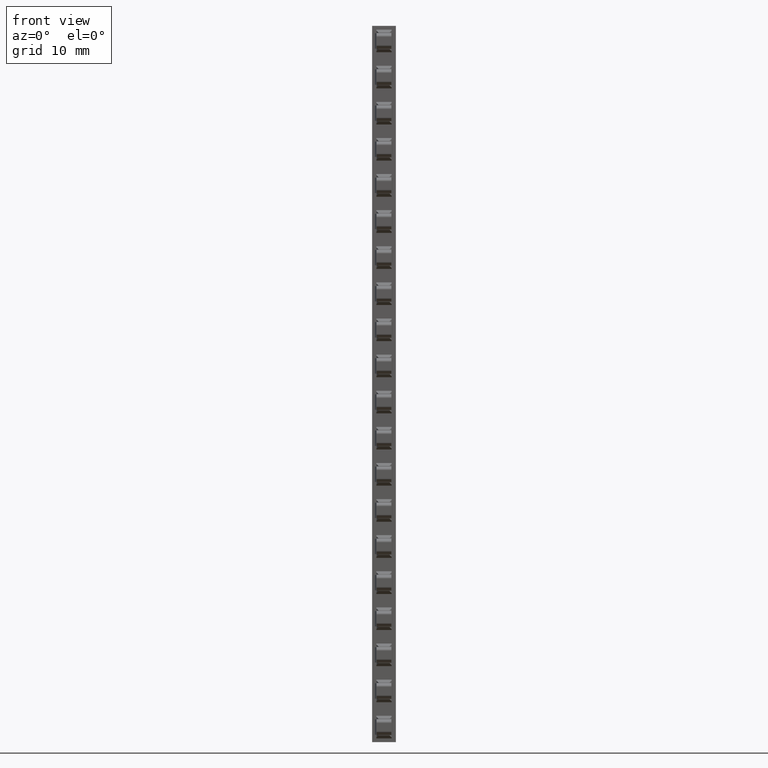
[diagram: clean part render]
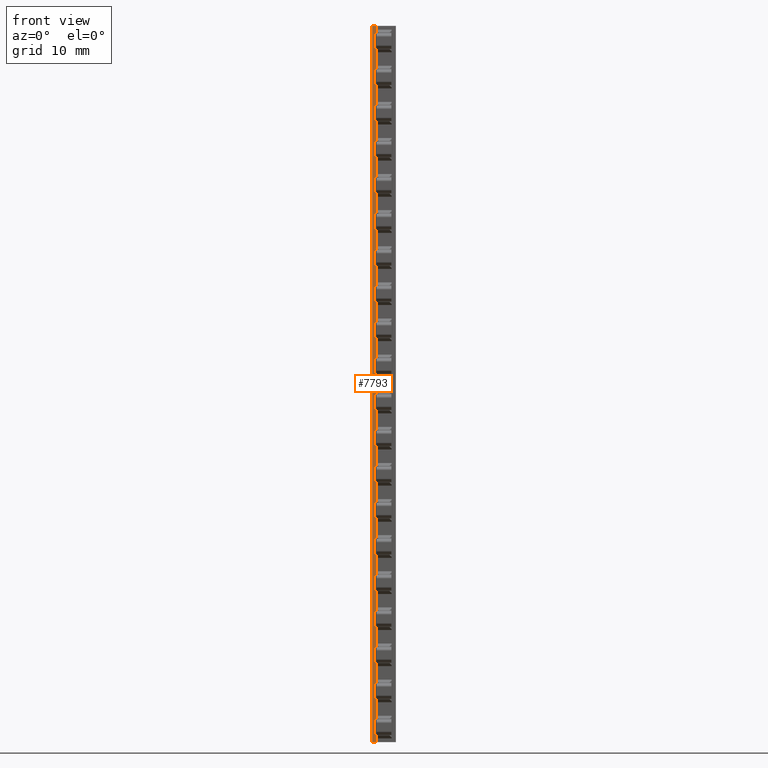
[diagram: same view with one face highlighted and labeled with its STEP entity id]
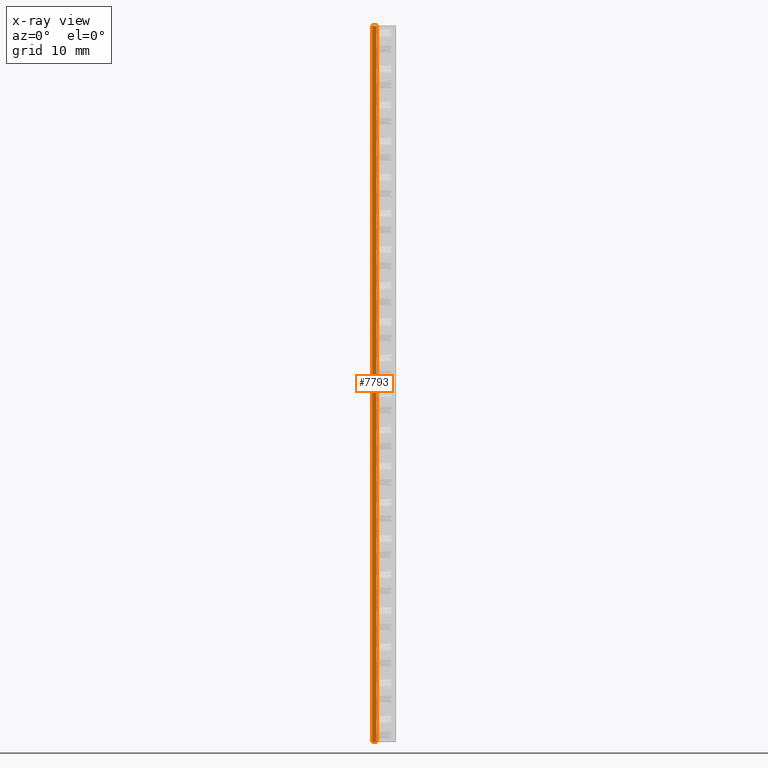
[diagram: x-ray of the same camera — body ghosted, the highlighted face saturated]
A machine part, front view. The second image highlights one B-rep face of the part: STEP entity #7793.
The next image is the same camera in x-ray: the body ghosted, the highlighted face saturated — about 0% of this face is hidden behind the body in this view.
In plain terms, the highlighted planar face has unit normal (0, 1, 0).
Its self-contained STEP definition (entity closure, byte-faithful):
#117 = EDGE_LOOP ( 'NONE', ( #16133, #16113, #16106, #16092 ) ) ;
#371 = VECTOR ( 'NONE', #18965, 1000.000000000000000 ) ;
#480 = VECTOR ( 'NONE', #19151, 1000.000000000000000 ) ;
#2974 = EDGE_CURVE ( 'NONE', #10568, #10432, #18139, .T. ) ;
#2981 = EDGE_CURVE ( 'NONE', #10568, #10345, #18243, .T. ) ;
#4088 = EDGE_CURVE ( 'NONE', #10338, #10432, #18979, .T. ) ;
#4148 = EDGE_CURVE ( 'NONE', #10345, #10338, #19137, .T. ) ;
#7793 = ADVANCED_FACE ( 'NONE', ( #9536 ), #9562, .F. ) ;
#9536 = FACE_OUTER_BOUND ( 'NONE', #117, .T. ) ;
#9539 = DIRECTION ( 'NONE',  ( 0.0000000000000000000, -0.0000000000000000000, 1.000000000000000000 ) ) ;
#9562 = PLANE ( 'NONE',  #25580 ) ;
#9565 = CARTESIAN_POINT ( 'NONE',  ( 1456.167660365589900, 1008.542679537518100, -100.1158559843420100 ) ) ;
#9571 = DIRECTION ( 'NONE',  ( 0.0000000000000000000, 1.000000000000000000, 0.0000000000000000000 ) ) ;
#10338 = VERTEX_POINT ( 'NONE', #26032 ) ;
#10345 = VERTEX_POINT ( 'NONE', #26042 ) ;
#10432 = VERTEX_POINT ( 'NONE', #26132 ) ;
#10568 = VERTEX_POINT ( 'NONE', #26274 ) ;
#11954 = VECTOR ( 'NONE', #18154, 1000.000000000000000 ) ;
#12013 = VECTOR ( 'NONE', #18187, 1000.000000000000000 ) ;
#16092 = ORIENTED_EDGE ( 'NONE', *, *, #2981, .F. ) ;
#16106 = ORIENTED_EDGE ( 'NONE', *, *, #4148, .F. ) ;
#16113 = ORIENTED_EDGE ( 'NONE', *, *, #4088, .F. ) ;
#16133 = ORIENTED_EDGE ( 'NONE', *, *, #2974, .T. ) ;
#18106 = CARTESIAN_POINT ( 'NONE',  ( 1456.769071211365800, 1008.542679537515100, -100.1158559843420100 ) ) ;
#18139 = LINE ( 'NONE', #18106, #11954 ) ;
#18154 = DIRECTION ( 'NONE',  ( -0.0000000000000000000, -0.0000000000000000000, 1.000000000000000000 ) ) ;
#18187 = DIRECTION ( 'NONE',  ( -1.000000000000000000, -0.0000000000000000000, 0.0000000000000000000 ) ) ;
#18243 = LINE ( 'NONE', #18272, #12013 ) ;
#18272 = CARTESIAN_POINT ( 'NONE',  ( 1456.167660365589900, 1008.542679537392800, -194.0499999999873100 ) ) ;
#18956 = CARTESIAN_POINT ( 'NONE',  ( 1456.167660365589900, 1008.542679537518100, -77.04999999999269300 ) ) ;
#18965 = DIRECTION ( 'NONE',  ( 1.000000000000000000, 0.0000000000000000000, -0.0000000000000000000 ) ) ;
#18979 = LINE ( 'NONE', #18956, #371 ) ;
#19137 = LINE ( 'NONE', #19160, #480 ) ;
#19151 = DIRECTION ( 'NONE',  ( 0.0000000000000000000, -0.0000000000000000000, 1.000000000000000000 ) ) ;
#19160 = CARTESIAN_POINT ( 'NONE',  ( 1456.068071211366000, 1008.542679537518100, -100.1158559843420100 ) ) ;
#25580 = AXIS2_PLACEMENT_3D ( 'NONE', #9565, #9571, #9539 ) ;
#26032 = CARTESIAN_POINT ( 'NONE',  ( 1456.068071211366000, 1008.542679537518100, -77.04999999999270700 ) ) ;
#26042 = CARTESIAN_POINT ( 'NONE',  ( 1456.068071211366000, 1008.542679537391300, -194.0499999999873600 ) ) ;
#26132 = CARTESIAN_POINT ( 'NONE',  ( 1456.769071211365800, 1008.542679537517400, -77.04999999999270700 ) ) ;
#26274 = CARTESIAN_POINT ( 'NONE',  ( 1456.769071211365800, 1008.542679537391300, -194.0499999999872200 ) ) ;